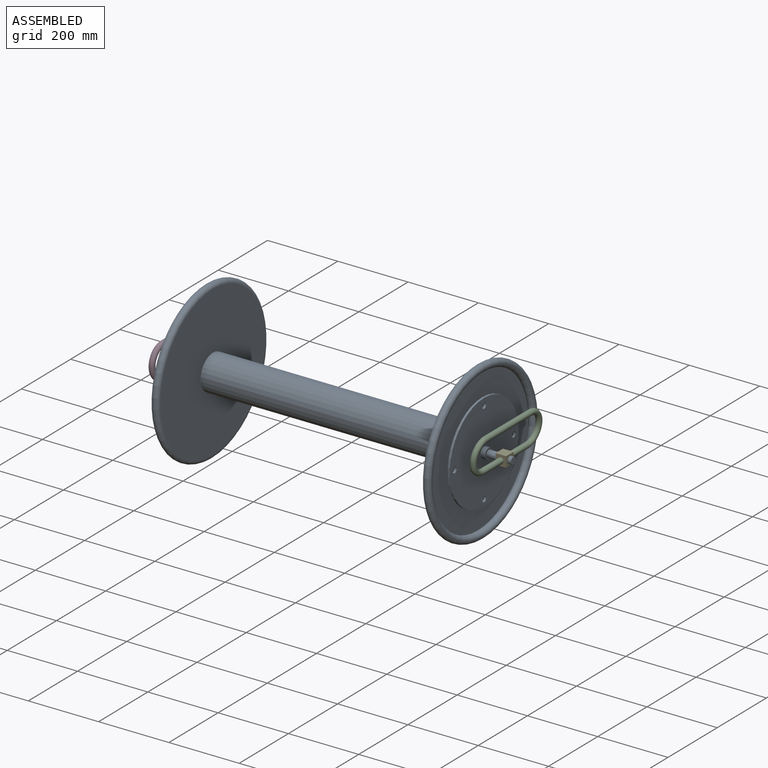
[diagram: assembled view]
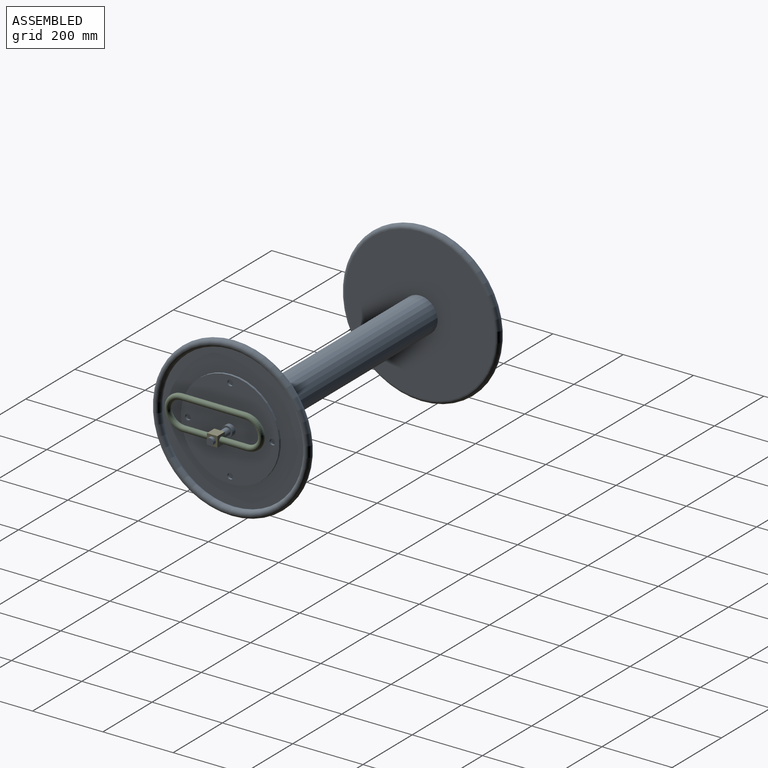
[diagram: assembled view, second angle]
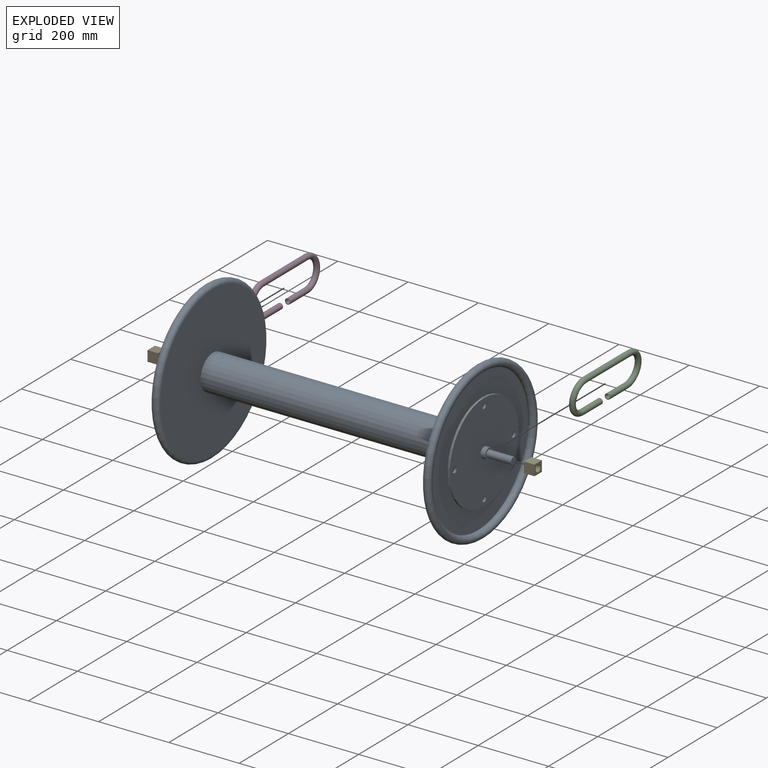
[diagram: exploded view]
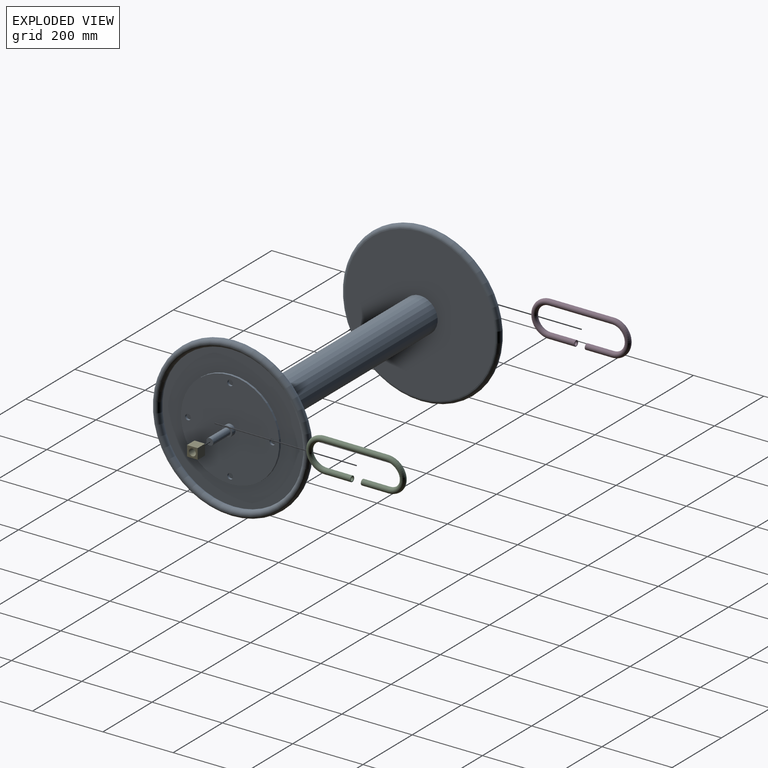
[diagram: exploded view, second angle]
ASSEMBLY  parts=5 mates=4
PART A: 41 faces, bbox 960x487.1x487.1 mm
  f0: plane 280x280mm, normal (-1,0,0), area 52917mm2, adj f1,f11,f12,f13,f14,f15
  f1: cylinder r=50mm len=100mm, axis (-1,0,0), area 4398.2mm2, adj f0,f2
  f2: plane 415.35x415.35mm, normal (1,0,0), area 127640.1mm2, adj f1,f3
  f3: torus R=214mm, axis (-1,0,0), area 84010.4mm2, adj f2,f4
  f4: plane 428x428mm, normal (-1,0,0), area 136018.4mm2, adj f3,f5
  f5: cylinder r=50mm len=750mm, axis (-1,0,0), area 235619.4mm2, adj f4,f20
  f6: plane 20x20mm, normal (1,0,0), area 314.2mm2, adj f7
  f7: cylinder r=10mm len=70mm, axis (-1,0,0), area 4398.2mm2, adj f6,f8
  f8: plane 30x30mm, normal (1,0,0), area 392.7mm2, adj f7,f9
  f9: cylinder r=15mm len=30mm, axis (-1,0,0), area 1225.2mm2, adj f8,f10
  f10: plane 280x280mm, normal (1,0,0), area 60064.1mm2, adj f9,f11,f12,f13,f14,f15
  f11: cylinder r=140mm len=280mm, axis (-1,0,0), area 5277.9mm2, adj f0,f10
  f12: cylinder r=8mm len=16mm, axis (1,0,0), area 301.6mm2, adj f0,f10
  f13: cylinder r=8mm len=16mm, axis (1,0,0), area 301.6mm2, adj f0,f10
  f14: cylinder r=8mm len=16mm, axis (1,0,0), area 301.6mm2, adj f0,f10
  f15: cylinder r=8mm len=16mm, axis (1,0,0), area 301.6mm2, adj f0,f10
  f16: plane 280x280mm, normal (1,0,0), area 52917mm2, adj f17,f26,f27,f28,f29,f30
  f17: cylinder r=50mm len=100mm, axis (1,0,0), area 4398.2mm2, adj f16,f18
  f18: plane 415.35x415.35mm, normal (-1,0,0), area 127640.1mm2, adj f17,f19
  f19: torus R=214mm, axis (1,0,0), area 84010.4mm2, adj f18,f20
  f20: plane 428x428mm, normal (1,0,0), area 136018.4mm2, adj f5,f19
  f21: plane 20x20mm, normal (-1,0,0), area 314.2mm2, adj f22
  f22: cylinder r=10mm len=70mm, axis (1,0,0), area 4398.2mm2, adj f21,f23
  f23: plane 30x30mm, normal (-1,0,0), area 392.7mm2, adj f22,f24
  f24: cylinder r=15mm len=30mm, axis (1,0,0), area 1225.2mm2, adj f23,f25
  f25: plane 280x280mm, normal (-1,0,0), area 60064.1mm2, adj f24,f26,f27,f28,f29,f30
  f26: cylinder r=140mm len=280mm, axis (1,0,0), area 5277.9mm2, adj f16,f25
  f27: cylinder r=8mm len=16mm, axis (-1,0,0), area 301.6mm2, adj f16,f25
  f28: cylinder r=8mm len=16mm, axis (-1,0,0), area 301.6mm2, adj f16,f25
  f29: cylinder r=8mm len=16mm, axis (-1,0,0), area 301.6mm2, adj f16,f25
  f30: cylinder r=8mm len=16mm, axis (-1,0,0), area 301.6mm2, adj f16,f25
  f31: plane 96x96mm, normal (1,0,0), area 6747.4mm2, adj f32,f35
  f32: cylinder r=12.5mm len=28mm, axis (1,0,0), area 2199.1mm2, adj f31,f33
  f33: plane 25x25mm, normal (1,0,0), area 176.7mm2, adj f32,f38
  f34: plane 96x96mm, normal (-1,0,0), area 6747.4mm2, adj f35,f36
  f35: cylinder r=48mm len=790mm, axis (-1,0,0), area 238258.4mm2, adj f31,f34
  f36: cylinder r=12.5mm len=28mm, axis (-1,0,0), area 2199.1mm2, adj f34,f37
  f37: plane 25x25mm, normal (-1,0,0), area 176.7mm2, adj f36,f38
  f38: cylinder r=10mm len=734mm, axis (-1,0,0), area 46118.6mm2, adj f33,f37
  f39: torus R=214mm, axis (-1,0,0), area 76035.4mm2
  f40: torus R=214mm, axis (1,0,0), area 76035.4mm2
PART B: 7 faces, bbox 30x30x30 mm
  f0: plane 30x30mm, normal (0,1,0), area 900mm2, adj f1,f4,f5,f6
  f1: plane 30x30mm, normal (0,0,1), area 900mm2, adj f0,f2,f5,f6
  f2: plane 30x30mm, normal (0,-1,0), area 900mm2, adj f1,f4,f5,f6
  f3: cylinder r=10mm len=30mm, axis (1,0,0), area 1885mm2, adj f5,f6
  f4: plane 30x30mm, normal (0,0,-1), area 900mm2, adj f0,f2,f5,f6
  f5: plane 30x30mm, normal (-1,0,0), area 585.8mm2, adj f0,f1,f2,f3,f4
  f6: plane 30x30mm, normal (1,0,0), area 585.8mm2, adj f0,f1,f2,f3,f4
PART C: 12 faces, bbox 16x290.4x110.4 mm
  f0: cylinder r=6mm len=75mm, axis (0,-1,0), area 2827.4mm2, adj f1,f5
  f1: torus R=43mm, axis (1,0,0), area 5092.7mm2, adj f0,f2
  f2: cylinder r=6mm len=180mm, axis (0,1,0), area 6785.8mm2, adj f1,f3
  f3: torus R=43mm, axis (1,0,0), area 5092.7mm2, adj f2,f4
  f4: cylinder r=6mm len=75mm, axis (0,-1,0), area 2827.4mm2, adj f3,f6
  f5: plane 16x16mm, normal (0,1,0), area 88mm2, adj f0,f7
  f6: plane 16x16mm, normal (0,-1,0), area 88mm2, adj f4,f11
  f7: cylinder r=8mm len=75mm, axis (0,-1,0), area 3769.9mm2, adj f5,f8
  f8: torus R=43mm, axis (1,0,0), area 6790.3mm2, adj f7,f9
  f9: cylinder r=8mm len=180mm, axis (0,1,0), area 9047.8mm2, adj f8,f10
  f10: torus R=43mm, axis (1,0,0), area 6790.3mm2, adj f9,f11
  f11: cylinder r=8mm len=75mm, axis (0,-1,0), area 3769.9mm2, adj f6,f10
PART D: 12 faces, bbox 16x290.4x110.4 mm
  f0: cylinder r=6mm len=75mm, axis (0,-1,0), area 2827.4mm2, adj f1,f5
  f1: torus R=43mm, axis (-1,0,0), area 5092.7mm2, adj f0,f2
  f2: cylinder r=6mm len=180mm, axis (0,1,0), area 6785.8mm2, adj f1,f3
  f3: torus R=43mm, axis (-1,0,0), area 5092.7mm2, adj f2,f4
  f4: cylinder r=6mm len=75mm, axis (0,-1,0), area 2827.4mm2, adj f3,f6
  f5: plane 16x16mm, normal (0,1,0), area 88mm2, adj f0,f7
  f6: plane 16x16mm, normal (0,-1,0), area 88mm2, adj f4,f11
  f7: cylinder r=8mm len=75mm, axis (0,-1,0), area 3769.9mm2, adj f5,f8
  f8: torus R=43mm, axis (-1,0,0), area 6790.3mm2, adj f7,f9
  f9: cylinder r=8mm len=180mm, axis (0,1,0), area 9047.8mm2, adj f8,f10
  f10: torus R=43mm, axis (-1,0,0), area 6790.3mm2, adj f9,f11
  f11: cylinder r=8mm len=75mm, axis (0,-1,0), area 3769.9mm2, adj f6,f10
PART E: 7 faces, bbox 30x30x30 mm
  f0: plane 30x30mm, normal (0,1,0), area 900mm2, adj f1,f4,f5,f6
  f1: plane 30x30mm, normal (0,0,1), area 900mm2, adj f0,f2,f5,f6
  f2: plane 30x30mm, normal (0,-1,0), area 900mm2, adj f1,f4,f5,f6
  f3: cylinder r=10mm len=30mm, axis (-1,0,0), area 1885mm2, adj f5,f6
  f4: plane 30x30mm, normal (0,0,-1), area 900mm2, adj f0,f2,f5,f6
  f5: plane 30x30mm, normal (1,0,0), area 585.8mm2, adj f0,f1,f2,f3,f4
  f6: plane 30x30mm, normal (-1,0,0), area 585.8mm2, adj f0,f1,f2,f3,f4
PLACE A at identity fixed
PLACE B at identity
PLACE C rot(axis=(1,0,-0.05),179.9deg) t=(2.31,0.11,45.75)mm
PLACE D rot(axis=(0,1,0),180deg) t=(-910,0,0)mm
PLACE E rot(axis=(-1,0,0),90.1deg) t=(0,0,0)mm
MATE revolute D.f7 <-> B.f0  axis (0,-1,0) through (-455,15,0)mm
MATE revolute E.f3 <-> A.f1  axis (-1,0,0) through (440,0,0)mm
MATE revolute B.f3 <-> A.f1  axis (1,0,0) through (-440,0,0)mm
MATE revolute C.f7 <-> E.f1  axis (0,-1,0) through (455,15,-0.04)mm
